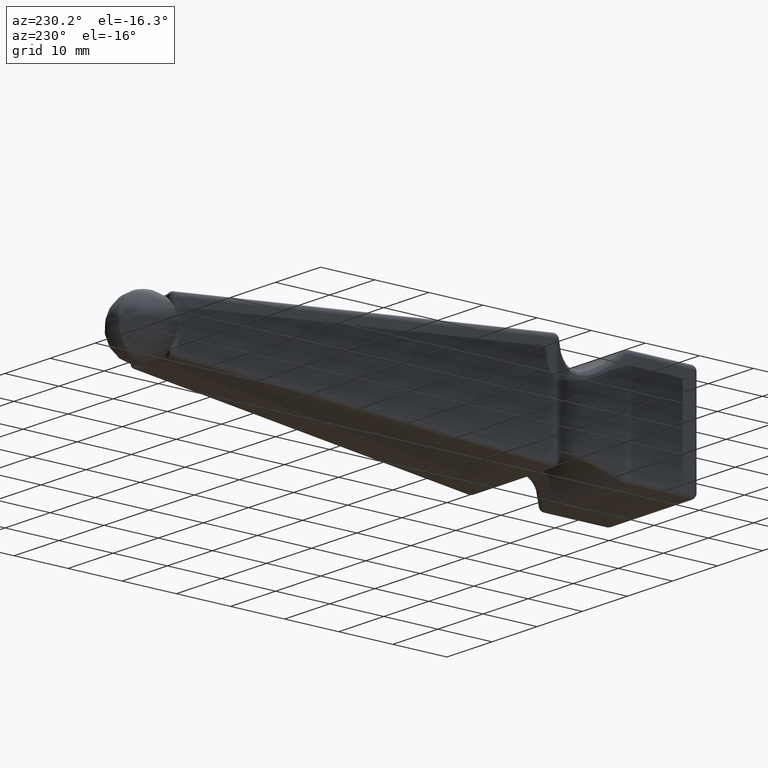
[diagram: clean part render]
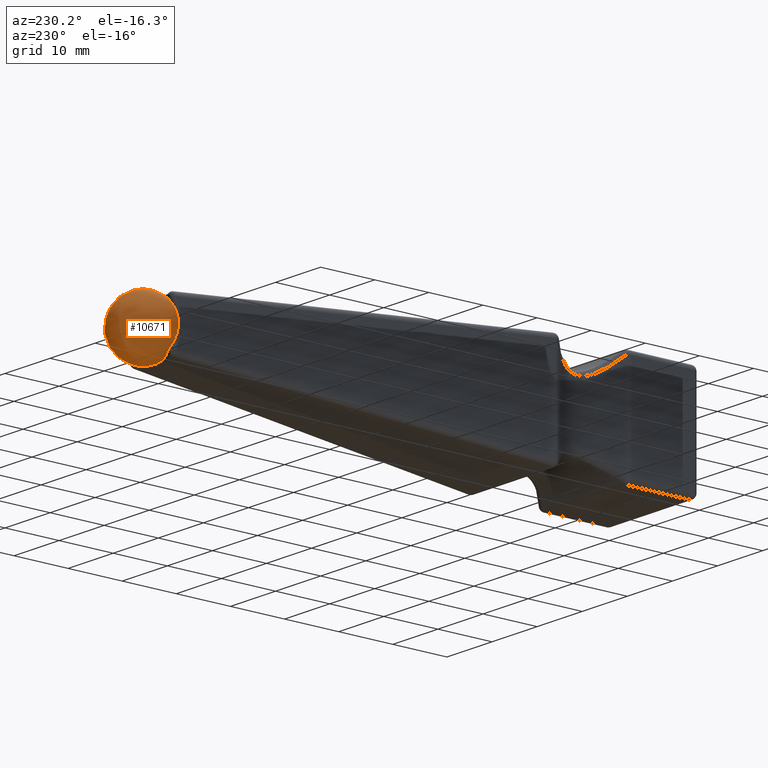
[diagram: same view with one face highlighted and labeled with its STEP entity id]
A machine part, auxiliary view. The second image highlights one B-rep face of the part: STEP entity #10671.
In plain terms, the highlighted spherical surface has radius 5.5 mm.
Its self-contained STEP definition (entity closure, byte-faithful):
#16 = CARTESIAN_POINT ( 'NONE',  ( -2.485901990187332267, 42.37486553214766616, 4.422001219892254475 ) ) ;
#22 = CARTESIAN_POINT ( 'NONE',  ( -2.485901990187332267, 42.37486553214766616, 4.422001219892254475 ) ) ;
#25 = CARTESIAN_POINT ( 'NONE',  ( -3.591359950952449420, 42.80326847839162241, -3.804370624199921558 ) ) ;
#71 = CARTESIAN_POINT ( 'NONE',  ( 4.422001219892254475, 42.37486553214767326, -2.485901990187336708 ) ) ;
#86 = ORIENTED_EDGE ( 'NONE', *, *, #3804, .T. ) ;
#114 = CARTESIAN_POINT ( 'NONE',  ( 2.485901990187330490, 42.37486553214766616, 4.422001219892255364 ) ) ;
#152 = CARTESIAN_POINT ( 'NONE',  ( 3.804370624199922002, 42.80326847839162241, -3.591359950952450308 ) ) ;
#155 = CARTESIAN_POINT ( 'NONE',  ( -0.8585299307367911803, 42.03304650367191186, -4.859473533201232875 ) ) ;
#217 = CARTESIAN_POINT ( 'NONE',  ( 1.070112384019169083, 42.06554820238186210, -4.819145748134209484 ) ) ;
#330 = CARTESIAN_POINT ( 'NONE',  ( -3.746737720060920207, 42.84024266515275059, -3.669879564555198481 ) ) ;
#331 = CARTESIAN_POINT ( 'NONE',  ( 4.899061801007025707, 41.99993199635537877, 0.2125079259712027435 ) ) ;
#348 = CARTESIAN_POINT ( 'NONE',  ( -4.569959239875117873, 42.26298644232976187, 2.099386257165692271 ) ) ;
#427 = CARTESIAN_POINT ( 'NONE',  ( 4.053281476947455886, 42.64358059707055304, 3.252241451352605672 ) ) ;
#455 = CARTESIAN_POINT ( 'NONE',  ( -4.819145748134207707, 42.06554820238186920, -1.070112384019173302 ) ) ;
#505 = VERTEX_POINT ( 'NONE', #71 ) ;
#961 = CARTESIAN_POINT ( 'NONE',  ( 3.669839070717401341, 42.84022359696518834, 3.746767442284019367 ) ) ;
#1023 = CARTESIAN_POINT ( 'NONE',  ( -2.485901990187331378, 42.37486553214766616, -4.422001219892255364 ) ) ;
#1184 = CARTESIAN_POINT ( 'NONE',  ( -2.294357318759396858, 42.31575276602157487, 4.501272727451074651 ) ) ;
#1277 = CARTESIAN_POINT ( 'NONE',  ( -3.804370624199921114, 42.80326847839162241, 3.591359950952451197 ) ) ;
#1313 = CARTESIAN_POINT ( 'NONE',  ( 0.8589963114679217693, 42.04112536603128802, -4.848984831659683081 ) ) ;
#1336 = CARTESIAN_POINT ( 'NONE',  ( -1.070112384019171081, 42.06554820238187631, 4.819145748134208596 ) ) ;
#1416 = VERTEX_POINT ( 'NONE', #11589 ) ;
#1458 = CARTESIAN_POINT ( 'NONE',  ( -3.591359950952449420, 42.80326847839162241, -3.804370624199921558 ) ) ;
#1538 = CARTESIAN_POINT ( 'NONE',  ( -4.501272727451075539, 42.31575276602156066, -2.294357318759398634 ) ) ;
#1757 = VERTEX_POINT ( 'NONE', #13645 ) ;
#2015 = VERTEX_POINT ( 'NONE', #152 ) ;
#2056 = EDGE_CURVE ( 'NONE', #1757, #6958, #15192, .T. ) ;
#2157 = CARTESIAN_POINT ( 'NONE',  ( -4.258538862136871828, 42.49675941838726345, 2.880877998229792958 ) ) ;
#2176 = CARTESIAN_POINT ( 'NONE',  ( -2.485901990187331378, 42.37486553214766616, -4.422001219892255364 ) ) ;
#2424 = VERTEX_POINT ( 'NONE', #4052 ) ;
#2470 = CARTESIAN_POINT ( 'NONE',  ( -1.691112604600541802, 42.16876921032267944, 4.690622933645141934 ) ) ;
#2560 = CARTESIAN_POINT ( 'NONE',  ( 4.689066924782184564, 42.16999983432247490, -1.697035760069030896 ) ) ;
#2586 = CARTESIAN_POINT ( 'NONE',  ( 4.422001219892254475, 42.37486553214767326, -2.485901990187336708 ) ) ;
#2609 = CARTESIAN_POINT ( 'NONE',  ( 2.294357318759391973, 42.31575276602156777, -4.501272727451076427 ) ) ;
#2637 = B_SPLINE_CURVE_WITH_KNOTS ( 'NONE', 3,
 ( #12403, #11190, #3902, #5078 ),
 .UNSPECIFIED., .F., .F.,
 ( 4, 4 ),
 ( 0.001916105708454318842, 0.003251300571709238481 ),
 .UNSPECIFIED. ) ;
#2687 = EDGE_CURVE ( 'NONE', #8334, #14815, #11636, .T. ) ;
#3210 = EDGE_CURVE ( 'NONE', #2015, #11724, #14259, .T. ) ;
#3228 = CARTESIAN_POINT ( 'NONE',  ( 3.746737720060921095, 42.84024266515275059, 3.669879564555198925 ) ) ;
#3566 = CARTESIAN_POINT ( 'NONE',  ( 1.489306025547304957, 42.12987241196643851, 4.739337172267561904 ) ) ;
#3594 = CARTESIAN_POINT ( 'NONE',  ( 0.2125079259712017443, 41.99993199635536456, -4.899061801007023043 ) ) ;
#3659 = CARTESIAN_POINT ( 'NONE',  ( 2.880877998229788517, 42.49675941838725635, 4.258538862136872716 ) ) ;
#3720 = CARTESIAN_POINT ( 'NONE',  ( -0.8589963114679244338, 42.04112536603129513, 4.848984831659683969 ) ) ;
#3757 = B_SPLINE_CURVE_WITH_KNOTS ( 'NONE', 3,
 ( #14958, #10230, #7663, #12686 ),
 .UNSPECIFIED., .F., .F.,
 ( 4, 4 ),
 ( 0.001916105708454431166, 0.003251300571709351672 ),
 .UNSPECIFIED. ) ;
#3788 = CARTESIAN_POINT ( 'NONE',  ( 4.258538862136870939, 42.49675941838726345, -2.880877998229794734 ) ) ;
#3804 = EDGE_CURVE ( 'NONE', #6774, #1416, #8067, .T. ) ;
#3814 = CARTESIAN_POINT ( 'NONE',  ( 4.690622933645142822, 42.16876921032269365, 1.691112604600544245 ) ) ;
#3858 = ORIENTED_EDGE ( 'NONE', *, *, #6244, .T. ) ;
#3862 = B_SPLINE_CURVE_WITH_KNOTS ( 'NONE', 3,
 ( #2176, #7208, #4588, #25 ),
 .UNSPECIFIED., .F., .F.,
 ( 4, 4 ),
 ( 0.008391952298129419854, 0.009723230537899248821 ),
 .UNSPECIFIED. ) ;
#3902 = CARTESIAN_POINT ( 'NONE',  ( -2.883905161746336709, 42.49769363392896082, 4.257286058737043355 ) ) ;
#4030 = CARTESIAN_POINT ( 'NONE',  ( -4.422001219892253587, 42.37486553214767326, 2.485901990187336263 ) ) ;
#4052 = CARTESIAN_POINT ( 'NONE',  ( -4.422001219892254475, 42.37486553214767326, -2.485901990187336263 ) ) ;
#4087 = VERTEX_POINT ( 'NONE', #11874 ) ;
#4235 = VERTEX_POINT ( 'NONE', #8980 ) ;
#4278 = CARTESIAN_POINT ( 'NONE',  ( 3.804370624200720918, 42.80326847839170767, 3.591359950952680347 ) ) ;
#4491 = CARTESIAN_POINT ( 'NONE',  ( 4.500901241174169343, 42.31602978335202891, -2.295254945397793733 ) ) ;
#4509 = EDGE_CURVE ( 'NONE', #1416, #7418, #4941, .T. ) ;
#4588 = CARTESIAN_POINT ( 'NONE',  ( -3.256556049713511758, 42.64561230301355010, -4.050114588798159332 ) ) ;
#4651 = CARTESIAN_POINT ( 'NONE',  ( 4.422001219892254475, 42.37486553214767326, -2.485901990187336708 ) ) ;
#4806 = VERTEX_POINT ( 'NONE', #1023 ) ;
#4815 = CARTESIAN_POINT ( 'NONE',  ( -1.697035760069028232, 42.16999983432247490, -4.689066924782184564 ) ) ;
#4845 = CARTESIAN_POINT ( 'NONE',  ( 3.591359950952987656, 42.80326847839184978, -3.804370624200495321 ) ) ;
#4865 = CARTESIAN_POINT ( 'NONE',  ( 4.422001219892254475, 42.37486553214767326, 2.485901990187336708 ) ) ;
#4866 = CARTESIAN_POINT ( 'NONE',  ( 2.485901990187328714, 42.37486553214766616, -4.422001219892256252 ) ) ;
#4941 = B_SPLINE_CURVE_WITH_KNOTS ( 'NONE', 3,
 ( #114, #3659, #12036, #8525 ),
 .UNSPECIFIED., .F., .F.,
 ( 4, 4 ),
 ( 0.008391952298129307097, 0.009723230537899132594 ),
 .UNSPECIFIED. ) ;
#5078 = CARTESIAN_POINT ( 'NONE',  ( -2.485901990187332267, 42.37486553214766616, 4.422001219892254475 ) ) ;
#5106 = CARTESIAN_POINT ( 'NONE',  ( -4.689066924782185453, 42.16999983432248200, 1.697035760069031118 ) ) ;
#5190 = CARTESIAN_POINT ( 'NONE',  ( 4.422001219892254475, 42.37486553214767326, 2.485901990187336708 ) ) ;
#5218 = CARTESIAN_POINT ( 'NONE',  ( -4.739337172267561904, 42.12987241196645982, 1.489306025547311840 ) ) ;
#5227 = CARTESIAN_POINT ( 'NONE',  ( -3.804370624200720918, 42.80326847839170767, -3.591359950952679903 ) ) ;
#5458 = CARTESIAN_POINT ( 'NONE',  ( 4.257286058737093981, 42.49769363392893240, 2.883905161746219026 ) ) ;
#5478 = ORIENTED_EDGE ( 'NONE', *, *, #15199, .T. ) ;
#5582 = B_SPLINE_CURVE_WITH_KNOTS ( 'NONE', 3,
 ( #7980, #961, #3228, #11721 ),
 .UNSPECIFIED., .F., .F.,
 ( 4, 4 ),
 ( 3.387155866508880464E-18, 0.0003065993474768298715 ),
 .UNSPECIFIED. ) ;
#5669 = AXIS2_PLACEMENT_3D ( 'NONE', #8115, #5697, #9519 ) ;
#5685 = B_SPLINE_CURVE_WITH_KNOTS ( 'NONE', 3,
 ( #4866, #2609, #13453, #9757, #13400, #217, #1313, #9658, #3594, #12077, #155, #14440, #4815, #8565, #7286, #14661 ),
 .UNSPECIFIED., .F., .F.,
 ( 4, 2, 2, 2, 2, 2, 2, 4 ),
 ( 0.003251300571709351672, 0.003893882037511861224, 0.004536463503314370344, 0.005179044969116879463, 0.005821626434919388582, 0.007106789366524405953, 0.007749370832326912470, 0.008391952298129419854 ),
 .UNSPECIFIED. ) ;
#5697 = DIRECTION ( 'NONE',  ( 0.000000000000000000, 0.000000000000000000, -1.000000000000000000 ) ) ;
#5772 = ORIENTED_EDGE ( 'NONE', *, *, #8613, .T. ) ;
#5913 = EDGE_CURVE ( 'NONE', #4087, #6774, #2637, .T. ) ;
#6244 = EDGE_CURVE ( 'NONE', #10579, #4235, #8901, .T. ) ;
#6409 = CARTESIAN_POINT ( 'NONE',  ( 2.295254945397784407, 42.31602978335203602, 4.500901241174169343 ) ) ;
#6510 = CARTESIAN_POINT ( 'NONE',  ( -4.859473533201235540, 42.03304650367191897, 0.8585299307367910693 ) ) ;
#6774 = VERTEX_POINT ( 'NONE', #22 ) ;
#6958 = VERTEX_POINT ( 'NONE', #15011 ) ;
#7096 = CARTESIAN_POINT ( 'NONE',  ( -3.669879564555094564, 42.84024266515270085, 3.746737720060997479 ) ) ;
#7133 = EDGE_CURVE ( 'NONE', #7628, #4806, #5685, .T. ) ;
#7208 = CARTESIAN_POINT ( 'NONE',  ( -2.880877998229791626, 42.49675941838725635, -4.258538862136870939 ) ) ;
#7213 = CARTESIAN_POINT ( 'NONE',  ( 3.804370624199922002, 42.80326847839162241, -3.591359950952450308 ) ) ;
#7286 = CARTESIAN_POINT ( 'NONE',  ( -2.295254945397786184, 42.31602978335203602, -4.500901241174170231 ) ) ;
#7311 = CARTESIAN_POINT ( 'NONE',  ( -1.486170773995569183, 42.12936804697197601, 4.739964386461285706 ) ) ;
#7403 = CARTESIAN_POINT ( 'NONE',  ( -3.669839070717404450, 42.84022359696519544, -3.746767442284021588 ) ) ;
#7418 = VERTEX_POINT ( 'NONE', #9639 ) ;
#7505 = EDGE_CURVE ( 'NONE', #7418, #1757, #5582, .T. ) ;
#7506 = CARTESIAN_POINT ( 'NONE',  ( 4.889021754462518743, 42.00825185692993102, 0.4304073677983166757 ) ) ;
#7608 = CARTESIAN_POINT ( 'NONE',  ( -3.591359950952449420, 42.80326847839162241, -3.804370624199921558 ) ) ;
#7628 = VERTEX_POINT ( 'NONE', #9853 ) ;
#7663 = CARTESIAN_POINT ( 'NONE',  ( 2.883905161746334933, 42.49769363392896082, -4.257286058737044243 ) ) ;
#7707 = B_SPLINE_CURVE_WITH_KNOTS ( 'NONE', 3,
 ( #1277, #13150, #7096, #13192 ),
 .UNSPECIFIED., .F., .F.,
 ( 4, 4 ),
 ( 3.387155866508880464E-18, 0.0003065993474764309393 ),
 .UNSPECIFIED. ) ;
#7722 = CARTESIAN_POINT ( 'NONE',  ( -4.690622933645142822, 42.16876921032267944, -1.691112604600544023 ) ) ;
#7807 = EDGE_LOOP ( 'NONE', ( #13349, #10183, #12957, #14213, #7835, #15292, #9056, #9973, #9514, #11246, #10466, #5772, #3858, #5478, #7872, #86 ) ) ;
#7809 = CARTESIAN_POINT ( 'NONE',  ( 3.804370624199922002, 42.80326847839162241, -3.591359950952450308 ) ) ;
#7835 = ORIENTED_EDGE ( 'NONE', *, *, #14633, .T. ) ;
#7872 = ORIENTED_EDGE ( 'NONE', *, *, #5913, .T. ) ;
#7980 = CARTESIAN_POINT ( 'NONE',  ( 3.591359950952447200, 42.80326847839161530, 3.804370624199922446 ) ) ;
#8067 = B_SPLINE_CURVE_WITH_KNOTS ( 'NONE', 3,
 ( #16, #1184, #14455, #2470, #7311, #1336, #3720, #12206, #14629, #9626, #10838, #3566, #9929, #8797, #6409, #14739 ),
 .UNSPECIFIED., .F., .F.,
 ( 4, 2, 2, 2, 2, 2, 2, 4 ),
 ( 0.003251300571709238481, 0.003893882037511748034, 0.004536463503314257587, 0.005179044969116765838, 0.005821626434919274957, 0.007106789366524292328, 0.007749370832326800580, 0.008391952298129307097 ),
 .UNSPECIFIED. ) ;
#8105 = B_SPLINE_CURVE_WITH_KNOTS ( 'NONE', 3,
 ( #4865, #13649, #14777, #3814, #13569, #10015, #14665, #7506, #331, #11248, #13408, #8572, #2560, #12250, #4491, #4651 ),
 .UNSPECIFIED., .F., .F.,
 ( 4, 2, 2, 2, 2, 2, 2, 4 ),
 ( 0.003251300571709235879, 0.003893882037511746733, 0.004536463503314257587, 0.005179044969116768440, 0.005821626434919279294, 0.007106789366524300135, 0.007749370832326809254, 0.008391952298129319240 ),
 .UNSPECIFIED. ) ;
#8115 = CARTESIAN_POINT ( 'NONE',  ( 0.000000000000000000, 44.50000000000000711, 0.000000000000000000 ) ) ;
#8331 = EDGE_CURVE ( 'NONE', #6958, #505, #8105, .T. ) ;
#8334 = VERTEX_POINT ( 'NONE', #1458 ) ;
#8445 = CARTESIAN_POINT ( 'NONE',  ( 4.050114588798157556, 42.64561230301355010, -3.256556049713515311 ) ) ;
#8525 = CARTESIAN_POINT ( 'NONE',  ( 3.591359950952447200, 42.80326847839161530, 3.804370624199922446 ) ) ;
#8565 = CARTESIAN_POINT ( 'NONE',  ( -2.099386257165689162, 42.26298644232976898, -4.569959239875116985 ) ) ;
#8572 = CARTESIAN_POINT ( 'NONE',  ( 4.739337172267562792, 42.12987241196645982, -1.489306025547311174 ) ) ;
#8573 = EDGE_CURVE ( 'NONE', #14815, #2424, #12691, .T. ) ;
#8613 = EDGE_CURVE ( 'NONE', #2424, #10579, #13983, .T. ) ;
#8797 = CARTESIAN_POINT ( 'NONE',  ( 2.099386257165685610, 42.26298644232976898, 4.569959239875116985 ) ) ;
#8799 = CARTESIAN_POINT ( 'NONE',  ( -4.053281476947454998, 42.64358059707055304, -3.252241451352606116 ) ) ;
#8852 = CARTESIAN_POINT ( 'NONE',  ( -4.889021754462521407, 42.00825185692994523, -0.4304073677983167867 ) ) ;
#8901 = B_SPLINE_CURVE_WITH_KNOTS ( 'NONE', 3,
 ( #9404, #2157, #14401, #10618 ),
 .UNSPECIFIED., .F., .F.,
 ( 4, 4 ),
 ( 0.008391952298129431997, 0.009723230537899257495 ),
 .UNSPECIFIED. ) ;
#8980 = CARTESIAN_POINT ( 'NONE',  ( -3.804370624199921114, 42.80326847839162241, 3.591359950952451197 ) ) ;
#9050 = B_SPLINE_CURVE_WITH_KNOTS ( 'NONE', 3,
 ( #2586, #3788, #8445, #7213 ),
 .UNSPECIFIED., .F., .F.,
 ( 4, 4 ),
 ( 0.008391952298129319240, 0.009723230537899143003 ),
 .UNSPECIFIED. ) ;
#9056 = ORIENTED_EDGE ( 'NONE', *, *, #12279, .T. ) ;
#9404 = CARTESIAN_POINT ( 'NONE',  ( -4.422001219892253587, 42.37486553214767326, 2.485901990187336263 ) ) ;
#9514 = ORIENTED_EDGE ( 'NONE', *, *, #11683, .T. ) ;
#9519 = DIRECTION ( 'NONE',  ( 1.000000000000000000, 0.000000000000000000, 0.000000000000000000 ) ) ;
#9625 = FACE_OUTER_BOUND ( 'NONE', #7807, .T. ) ;
#9626 = CARTESIAN_POINT ( 'NONE',  ( 0.4330580581983016764, 42.00013728599788010, 4.898813306864140849 ) ) ;
#9639 = CARTESIAN_POINT ( 'NONE',  ( 3.591359950952447200, 42.80326847839161530, 3.804370624199922446 ) ) ;
#9658 = CARTESIAN_POINT ( 'NONE',  ( 0.4304073677983139001, 42.00825185692993102, -4.889021754462517855 ) ) ;
#9757 = CARTESIAN_POINT ( 'NONE',  ( 1.691112604600539138, 42.16876921032267234, -4.690622933645139270 ) ) ;
#9853 = CARTESIAN_POINT ( 'NONE',  ( 2.485901990187328714, 42.37486553214766616, -4.422001219892256252 ) ) ;
#9929 = CARTESIAN_POINT ( 'NONE',  ( 1.697035760069024013, 42.16999983432247490, 4.689066924782187229 ) ) ;
#9931 = CARTESIAN_POINT ( 'NONE',  ( -4.422001219892254475, 42.37486553214767326, -2.485901990187336263 ) ) ;
#9973 = ORIENTED_EDGE ( 'NONE', *, *, #7133, .T. ) ;
#9976 = CARTESIAN_POINT ( 'NONE',  ( -4.500901241174168455, 42.31602978335202181, 2.295254945397788404 ) ) ;
#10015 = CARTESIAN_POINT ( 'NONE',  ( 4.819145748134210372, 42.06554820238187631, 1.070112384019172858 ) ) ;
#10077 = CARTESIAN_POINT ( 'NONE',  ( -4.422001219892254475, 42.37486553214767326, -2.485901990187336263 ) ) ;
#10156 = CARTESIAN_POINT ( 'NONE',  ( 3.746767442284102856, 42.84022359696515281, -3.669839070717295204 ) ) ;
#10183 = ORIENTED_EDGE ( 'NONE', *, *, #7505, .T. ) ;
#10230 = CARTESIAN_POINT ( 'NONE',  ( 3.252241451352826829, 42.64358059707064541, -4.053281476947333317 ) ) ;
#10466 = ORIENTED_EDGE ( 'NONE', *, *, #8573, .T. ) ;
#10579 = VERTEX_POINT ( 'NONE', #14043 ) ;
#10618 = CARTESIAN_POINT ( 'NONE',  ( -3.804370624199921114, 42.80326847839162241, 3.591359950952451197 ) ) ;
#10671 = ADVANCED_FACE ( 'NONE', ( #9625 ), #11509, .T. ) ;
#10838 = CARTESIAN_POINT ( 'NONE',  ( 0.8585299307367890709, 42.03304650367191186, 4.859473533201232875 ) ) ;
#11164 = CARTESIAN_POINT ( 'NONE',  ( -3.804370624200720918, 42.80326847839170767, -3.591359950952679903 ) ) ;
#11190 = CARTESIAN_POINT ( 'NONE',  ( -3.252241451352826829, 42.64358059707064541, 4.053281476947333317 ) ) ;
#11214 = CARTESIAN_POINT ( 'NONE',  ( -4.848984831659685746, 42.04112536603128802, -0.8589963114679258771 ) ) ;
#11246 = ORIENTED_EDGE ( 'NONE', *, *, #2687, .T. ) ;
#11248 = CARTESIAN_POINT ( 'NONE',  ( 4.898813306864140849, 42.00013728599789431, -0.4330580581983047295 ) ) ;
#11315 = CARTESIAN_POINT ( 'NONE',  ( -4.898813306864140849, 42.00013728599789431, 0.4330580581983032307 ) ) ;
#11369 = CARTESIAN_POINT ( 'NONE',  ( -4.571520623595013433, 42.26178292817117210, -2.094761530398053573 ) ) ;
#11484 = CARTESIAN_POINT ( 'NONE',  ( 3.591359950952987656, 42.80326847839184978, -3.804370624200495321 ) ) ;
#11509 = SPHERICAL_SURFACE ( 'NONE', #5669, 5.499999999999998224 ) ;
#11589 = CARTESIAN_POINT ( 'NONE',  ( 2.485901990187330490, 42.37486553214766616, 4.422001219892255364 ) ) ;
#11636 = B_SPLINE_CURVE_WITH_KNOTS ( 'NONE', 3,
 ( #7608, #7403, #330, #13460 ),
 .UNSPECIFIED., .F., .F.,
 ( 4, 4 ),
 ( 6.133173666733496745E-19, 0.0003065993474768324194 ),
 .UNSPECIFIED. ) ;
#11683 = EDGE_CURVE ( 'NONE', #4806, #8334, #3862, .T. ) ;
#11721 = CARTESIAN_POINT ( 'NONE',  ( 3.804370624200720918, 42.80326847839170767, 3.591359950952680347 ) ) ;
#11724 = VERTEX_POINT ( 'NONE', #4845 ) ;
#11874 = CARTESIAN_POINT ( 'NONE',  ( -3.591359950952988989, 42.80326847839184978, 3.804370624200494877 ) ) ;
#12036 = CARTESIAN_POINT ( 'NONE',  ( 3.256556049713508205, 42.64561230301354300, 4.050114588798161996 ) ) ;
#12077 = CARTESIAN_POINT ( 'NONE',  ( -0.4330580581983027311, 42.00013728599788010, -4.898813306864140849 ) ) ;
#12206 = CARTESIAN_POINT ( 'NONE',  ( -0.4304073677983176749, 42.00825185692993102, 4.889021754462517855 ) ) ;
#12250 = CARTESIAN_POINT ( 'NONE',  ( 4.569959239875116097, 42.26298644232976187, -2.099386257165693603 ) ) ;
#12279 = EDGE_CURVE ( 'NONE', #11724, #7628, #3757, .T. ) ;
#12380 = CARTESIAN_POINT ( 'NONE',  ( -4.257286058737093981, 42.49769363392893240, -2.883905161746219470 ) ) ;
#12403 = CARTESIAN_POINT ( 'NONE',  ( -3.591359950952988989, 42.80326847839184978, 3.804370624200494877 ) ) ;
#12584 = CARTESIAN_POINT ( 'NONE',  ( -4.739964386461287482, 42.12936804697199022, -1.486170773995572292 ) ) ;
#12686 = CARTESIAN_POINT ( 'NONE',  ( 2.485901990187328714, 42.37486553214766616, -4.422001219892256252 ) ) ;
#12691 = B_SPLINE_CURVE_WITH_KNOTS ( 'NONE', 3,
 ( #11164, #8799, #12380, #10077 ),
 .UNSPECIFIED., .F., .F.,
 ( 4, 4 ),
 ( 0.001916105708454839259, 0.003251300571709350370 ),
 .UNSPECIFIED. ) ;
#12957 = ORIENTED_EDGE ( 'NONE', *, *, #2056, .T. ) ;
#13150 = CARTESIAN_POINT ( 'NONE',  ( -3.746767442284097083, 42.84022359696514570, 3.669839070717298757 ) ) ;
#13192 = CARTESIAN_POINT ( 'NONE',  ( -3.591359950952988989, 42.80326847839184978, 3.804370624200494877 ) ) ;
#13349 = ORIENTED_EDGE ( 'NONE', *, *, #4509, .T. ) ;
#13400 = CARTESIAN_POINT ( 'NONE',  ( 1.486170773995567407, 42.12936804697199022, -4.739964386461287482 ) ) ;
#13408 = CARTESIAN_POINT ( 'NONE',  ( 4.859473533201232875, 42.03304650367191186, -0.8585299307367937338 ) ) ;
#13453 = CARTESIAN_POINT ( 'NONE',  ( 2.094761530398049132, 42.26178292817117210, -4.571520623595017874 ) ) ;
#13460 = CARTESIAN_POINT ( 'NONE',  ( -3.804370624200720918, 42.80326847839170767, -3.591359950952679903 ) ) ;
#13569 = CARTESIAN_POINT ( 'NONE',  ( 4.739964386461287482, 42.12936804697199022, 1.486170773995571626 ) ) ;
#13645 = CARTESIAN_POINT ( 'NONE',  ( 3.804370624200720918, 42.80326847839170767, 3.591359950952680347 ) ) ;
#13649 = CARTESIAN_POINT ( 'NONE',  ( 4.501272727451075539, 42.31575276602156066, 2.294357318759399078 ) ) ;
#13686 = CARTESIAN_POINT ( 'NONE',  ( -4.899061801007024819, 41.99993199635537877, -0.2125079259712028823 ) ) ;
#13868 = CARTESIAN_POINT ( 'NONE',  ( 3.669879564555095897, 42.84024266515270085, -3.746737720060995258 ) ) ;
#13983 = B_SPLINE_CURVE_WITH_KNOTS ( 'NONE', 3,
 ( #9931, #1538, #11369, #7722, #12584, #455, #11214, #8852, #13686, #11315, #6510, #5218, #5106, #348, #9976, #4030 ),
 .UNSPECIFIED., .F., .F.,
 ( 4, 2, 2, 2, 2, 2, 2, 4 ),
 ( 0.003251300571709350370, 0.003893882037511861224, 0.004536463503314372078, 0.005179044969116882932, 0.005821626434919393786, 0.007106789366524413759, 0.007749370832326922878, 0.008391952298129431997 ),
 .UNSPECIFIED. ) ;
#14043 = CARTESIAN_POINT ( 'NONE',  ( -4.422001219892253587, 42.37486553214767326, 2.485901990187336263 ) ) ;
#14213 = ORIENTED_EDGE ( 'NONE', *, *, #8331, .T. ) ;
#14259 = B_SPLINE_CURVE_WITH_KNOTS ( 'NONE', 3,
 ( #7809, #10156, #13868, #11484 ),
 .UNSPECIFIED., .F., .F.,
 ( 4, 4 ),
 ( 9.832225353989043095E-18, 0.0003065993474764453050 ),
 .UNSPECIFIED. ) ;
#14401 = CARTESIAN_POINT ( 'NONE',  ( -4.050114588798159332, 42.64561230301355010, 3.256556049713514422 ) ) ;
#14440 = CARTESIAN_POINT ( 'NONE',  ( -1.489306025547308954, 42.12987241196644561, -4.739337172267562792 ) ) ;
#14455 = CARTESIAN_POINT ( 'NONE',  ( -2.094761530398051352, 42.26178292817117921, 4.571520623595016097 ) ) ;
#14629 = CARTESIAN_POINT ( 'NONE',  ( -0.2125079259712043811, 41.99993199635536456, 4.899061801007023043 ) ) ;
#14633 = EDGE_CURVE ( 'NONE', #505, #2015, #9050, .T. ) ;
#14661 = CARTESIAN_POINT ( 'NONE',  ( -2.485901990187331378, 42.37486553214766616, -4.422001219892255364 ) ) ;
#14665 = CARTESIAN_POINT ( 'NONE',  ( 4.848984831659686634, 42.04112536603129513, 0.8589963114679245448 ) ) ;
#14739 = CARTESIAN_POINT ( 'NONE',  ( 2.485901990187330490, 42.37486553214766616, 4.422001219892255364 ) ) ;
#14777 = CARTESIAN_POINT ( 'NONE',  ( 4.571520623595014321, 42.26178292817117921, 2.094761530398055349 ) ) ;
#14815 = VERTEX_POINT ( 'NONE', #5227 ) ;
#14958 = CARTESIAN_POINT ( 'NONE',  ( 3.591359950952987656, 42.80326847839184978, -3.804370624200495321 ) ) ;
#15011 = CARTESIAN_POINT ( 'NONE',  ( 4.422001219892254475, 42.37486553214767326, 2.485901990187336708 ) ) ;
#15192 = B_SPLINE_CURVE_WITH_KNOTS ( 'NONE', 3,
 ( #4278, #427, #5458, #5190 ),
 .UNSPECIFIED., .F., .F.,
 ( 4, 4 ),
 ( 0.001916105708454725852, 0.003251300571709235879 ),
 .UNSPECIFIED. ) ;
#15199 = EDGE_CURVE ( 'NONE', #4235, #4087, #7707, .T. ) ;
#15292 = ORIENTED_EDGE ( 'NONE', *, *, #3210, .T. ) ;